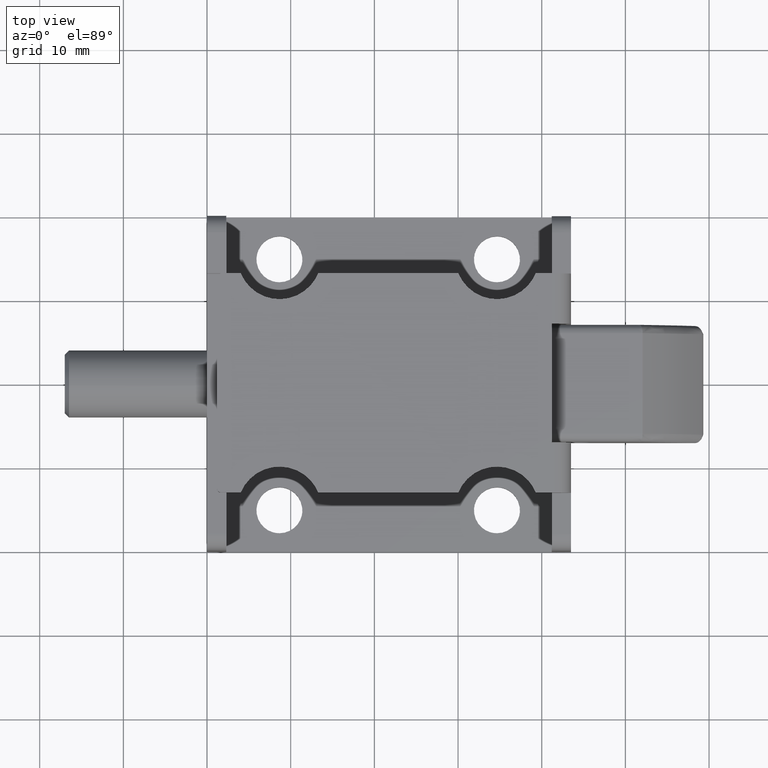
[diagram: clean part render]
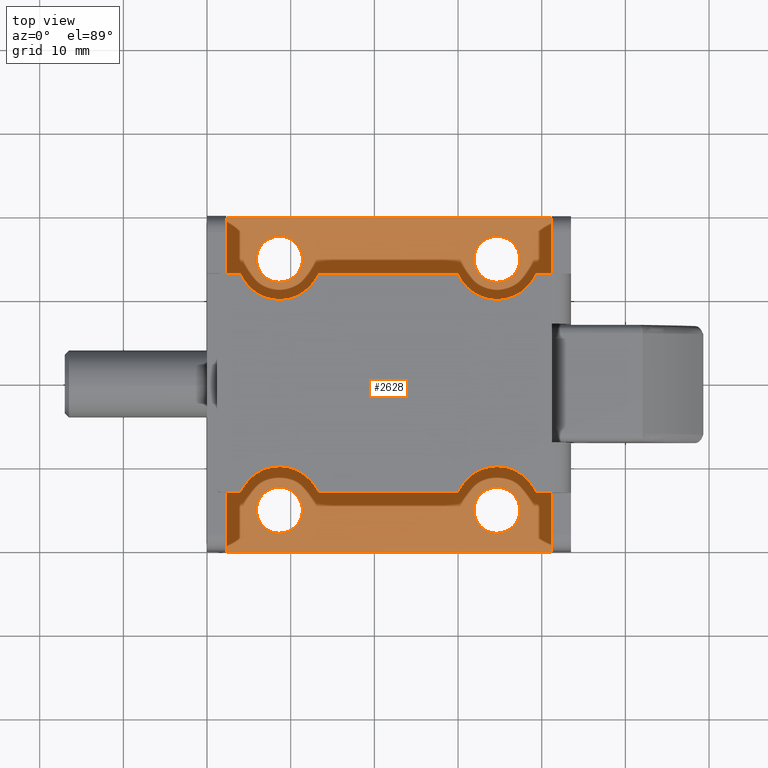
[diagram: same view with one face highlighted and labeled with its STEP entity id]
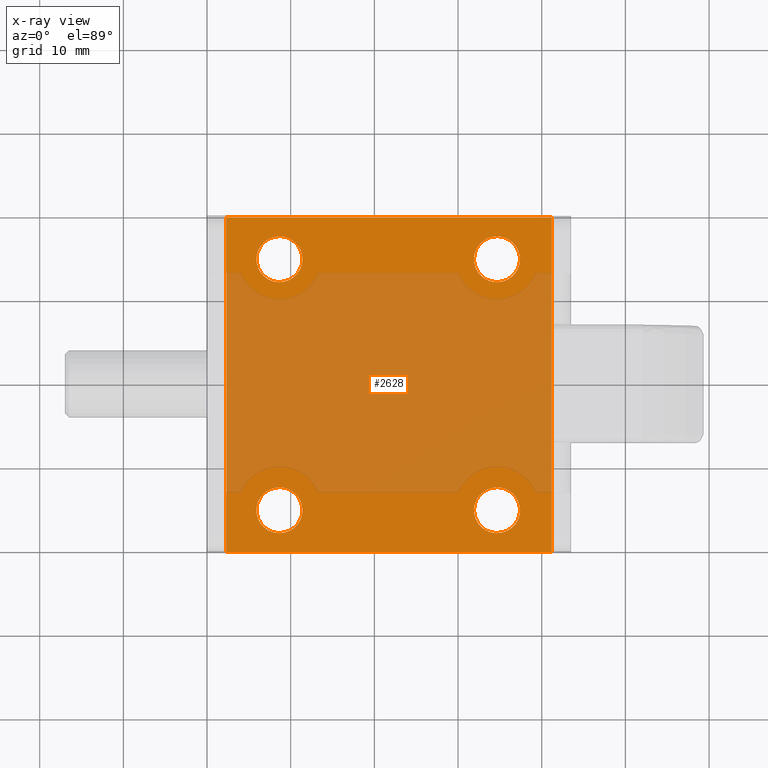
[diagram: x-ray of the same camera — body ghosted, the highlighted face saturated]
A machine part, top view. The second image highlights one B-rep face of the part: STEP entity #2628.
The next image is the same camera in x-ray: the body ghosted, the highlighted face saturated — about 64% of this face is hidden behind the body in this view.
In plain terms, the highlighted face is a freeform B-spline surface patch.
Its self-contained STEP definition (entity closure, byte-faithful):
#612=CARTESIAN_POINT('',(8.650000000000109,5.0,17.750000000000000));
#613=VERTEX_POINT('',#612);
#614=CARTESIAN_POINT('',(5.908477332240707,5.0,15.215762513336699));
#615=VERTEX_POINT('',#614);
#616=CARTESIAN_POINT('',(8.650000000000109,5.0,17.750000000000000));
#617=CARTESIAN_POINT('',(6.107926148098390,5.000000000000001,17.750000000000000));
#618=CARTESIAN_POINT('',(5.908477332240707,4.999999999999999,15.215762513336704));
#626=(BOUNDED_CURVE()B_SPLINE_CURVE(2,(#616,#617,#618),.UNSPECIFIED.,.F.,.U.)B_SPLINE_CURVE_WITH_KNOTS((3,3),(0.0,0.236331300622121),.UNSPECIFIED.)CURVE()GEOMETRIC_REPRESENTATION_ITEM()RATIONAL_B_SPLINE_CURVE((1.0,0.723120658617669,0.969723356149599))REPRESENTATION_ITEM(''));
#627=EDGE_CURVE('',#613,#615,#626,.T.);
#668=CARTESIAN_POINT('',(11.391522667759510,5.0,14.784237486663301));
#669=VERTEX_POINT('',#668);
#675=CARTESIAN_POINT('',(11.391522667759515,5.0,14.784237486663301));
#676=CARTESIAN_POINT('',(11.400000000000114,5.0,14.891952205643390));
#677=CARTESIAN_POINT('',(11.400000000000110,5.0,15.0));
#678=CARTESIAN_POINT('',(11.400000000000110,5.000000000000001,17.750000000000000));
#679=CARTESIAN_POINT('',(8.650000000000109,5.0,17.750000000000000));
#687=(BOUNDED_CURVE()B_SPLINE_CURVE(2,(#675,#676,#677,#678,#679),.UNSPECIFIED.,.F.,.U.)B_SPLINE_CURVE_WITH_KNOTS((3,2,3),(0.736331300622121,0.750000000000000,1.0),.UNSPECIFIED.)CURVE()GEOMETRIC_REPRESENTATION_ITEM()RATIONAL_B_SPLINE_CURVE((0.969723356149599,0.983986122568879,1.0,0.707106781186548,1.0))REPRESENTATION_ITEM(''));
#688=EDGE_CURVE('',#669,#613,#687,.T.);
#711=CARTESIAN_POINT('',(8.650000000000109,5.0,12.250000000000000));
#712=VERTEX_POINT('',#711);
#713=CARTESIAN_POINT('',(5.908477332240707,4.999999999999999,15.215762513336704));
#714=CARTESIAN_POINT('',(5.900000000000109,4.999999999999999,15.108047794356608));
#715=CARTESIAN_POINT('',(5.900000000000109,5.0,15.0));
#716=CARTESIAN_POINT('',(5.900000000000109,5.000000000000001,12.250000000000000));
#717=CARTESIAN_POINT('',(8.650000000000109,5.0,12.250000000000000));
#725=(BOUNDED_CURVE()B_SPLINE_CURVE(2,(#713,#714,#715,#716,#717),.UNSPECIFIED.,.F.,.U.)B_SPLINE_CURVE_WITH_KNOTS((3,2,3),(0.236331300622121,0.250000000000000,0.500000000000000),.UNSPECIFIED.)CURVE()GEOMETRIC_REPRESENTATION_ITEM()RATIONAL_B_SPLINE_CURVE((0.969723356149599,0.983986122568879,1.0,0.707106781186548,1.0))REPRESENTATION_ITEM(''));
#726=EDGE_CURVE('',#615,#712,#725,.T.);
#728=CARTESIAN_POINT('',(8.650000000000109,5.0,12.250000000000000));
#729=CARTESIAN_POINT('',(11.192073851901824,4.999999999999999,12.250000000000002));
#730=CARTESIAN_POINT('',(11.391522667759507,5.0,14.784237486663304));
#738=(BOUNDED_CURVE()B_SPLINE_CURVE(2,(#728,#729,#730),.UNSPECIFIED.,.F.,.U.)B_SPLINE_CURVE_WITH_KNOTS((3,3),(0.500000000000000,0.736331300622121),.UNSPECIFIED.)CURVE()GEOMETRIC_REPRESENTATION_ITEM()RATIONAL_B_SPLINE_CURVE((1.0,0.723120658617669,0.969723356149599))REPRESENTATION_ITEM(''));
#739=EDGE_CURVE('',#712,#669,#738,.T.);
#794=CARTESIAN_POINT('',(34.649999999999999,5.0,17.750000000000000));
#795=VERTEX_POINT('',#794);
#796=CARTESIAN_POINT('',(31.908477332240601,5.0,15.215762513336699));
#797=VERTEX_POINT('',#796);
#798=CARTESIAN_POINT('',(34.649999999999999,5.0,17.750000000000000));
#799=CARTESIAN_POINT('',(32.107926148098286,5.000000000000001,17.750000000000000));
#800=CARTESIAN_POINT('',(31.908477332240594,4.999999999999999,15.215762513336704));
#808=(BOUNDED_CURVE()B_SPLINE_CURVE(2,(#798,#799,#800),.UNSPECIFIED.,.F.,.U.)B_SPLINE_CURVE_WITH_KNOTS((3,3),(0.0,0.236331300622121),.UNSPECIFIED.)CURVE()GEOMETRIC_REPRESENTATION_ITEM()RATIONAL_B_SPLINE_CURVE((1.0,0.723120658617669,0.969723356149599))REPRESENTATION_ITEM(''));
#809=EDGE_CURVE('',#795,#797,#808,.T.);
#850=CARTESIAN_POINT('',(37.391522667759403,5.0,14.784237486663301));
#851=VERTEX_POINT('',#850);
#857=CARTESIAN_POINT('',(37.391522667759403,5.0,14.784237486663301));
#858=CARTESIAN_POINT('',(37.400000000000006,5.0,14.891952205643390));
#859=CARTESIAN_POINT('',(37.400000000000013,5.0,15.0));
#860=CARTESIAN_POINT('',(37.399999999999999,5.000000000000001,17.750000000000000));
#861=CARTESIAN_POINT('',(34.649999999999999,5.0,17.750000000000000));
#869=(BOUNDED_CURVE()B_SPLINE_CURVE(2,(#857,#858,#859,#860,#861),.UNSPECIFIED.,.F.,.U.)B_SPLINE_CURVE_WITH_KNOTS((3,2,3),(0.736331300622121,0.750000000000000,1.0),.UNSPECIFIED.)CURVE()GEOMETRIC_REPRESENTATION_ITEM()RATIONAL_B_SPLINE_CURVE((0.969723356149599,0.983986122568879,1.0,0.707106781186548,1.0))REPRESENTATION_ITEM(''));
#870=EDGE_CURVE('',#851,#795,#869,.T.);
#893=CARTESIAN_POINT('',(34.649999999999999,5.0,12.250000000000000));
#894=VERTEX_POINT('',#893);
#895=CARTESIAN_POINT('',(31.908477332240594,4.999999999999999,15.215762513336704));
#896=CARTESIAN_POINT('',(31.899999999999995,4.999999999999999,15.108047794356608));
#897=CARTESIAN_POINT('',(31.899999999999999,5.0,15.0));
#898=CARTESIAN_POINT('',(31.900000000000006,5.000000000000001,12.250000000000000));
#899=CARTESIAN_POINT('',(34.649999999999999,5.0,12.250000000000000));
#907=(BOUNDED_CURVE()B_SPLINE_CURVE(2,(#895,#896,#897,#898,#899),.UNSPECIFIED.,.F.,.U.)B_SPLINE_CURVE_WITH_KNOTS((3,2,3),(0.236331300622121,0.250000000000000,0.500000000000000),.UNSPECIFIED.)CURVE()GEOMETRIC_REPRESENTATION_ITEM()RATIONAL_B_SPLINE_CURVE((0.969723356149599,0.983986122568879,1.0,0.707106781186548,1.0))REPRESENTATION_ITEM(''));
#908=EDGE_CURVE('',#797,#894,#907,.T.);
#910=CARTESIAN_POINT('',(34.649999999999999,5.0,12.250000000000000));
#911=CARTESIAN_POINT('',(37.192073851901725,4.999999999999999,12.250000000000002));
#912=CARTESIAN_POINT('',(37.391522667759411,5.0,14.784237486663304));
#920=(BOUNDED_CURVE()B_SPLINE_CURVE(2,(#910,#911,#912),.UNSPECIFIED.,.F.,.U.)B_SPLINE_CURVE_WITH_KNOTS((3,3),(0.500000000000000,0.736331300622121),.UNSPECIFIED.)CURVE()GEOMETRIC_REPRESENTATION_ITEM()RATIONAL_B_SPLINE_CURVE((1.0,0.723120658617669,0.969723356149599))REPRESENTATION_ITEM(''));
#921=EDGE_CURVE('',#894,#851,#920,.T.);
#976=CARTESIAN_POINT('',(8.650000000000109,5.0,-12.250000000000000));
#977=VERTEX_POINT('',#976);
#978=CARTESIAN_POINT('',(5.908477332240707,5.0,-14.784237486663301));
#979=VERTEX_POINT('',#978);
#980=CARTESIAN_POINT('',(8.650000000000109,5.0,-12.250000000000000));
#981=CARTESIAN_POINT('',(6.107926148098391,4.999999999999999,-12.249999999999998));
#982=CARTESIAN_POINT('',(5.908477332240707,5.0,-14.784237486663304));
#990=(BOUNDED_CURVE()B_SPLINE_CURVE(2,(#980,#981,#982),.UNSPECIFIED.,.F.,.U.)B_SPLINE_CURVE_WITH_KNOTS((3,3),(0.0,0.236331300622121),.UNSPECIFIED.)CURVE()GEOMETRIC_REPRESENTATION_ITEM()RATIONAL_B_SPLINE_CURVE((1.0,0.723120658617669,0.969723356149599))REPRESENTATION_ITEM(''));
#991=EDGE_CURVE('',#977,#979,#990,.T.);
#1032=CARTESIAN_POINT('',(11.391522667759510,5.0,-15.215762513336699));
#1033=VERTEX_POINT('',#1032);
#1039=CARTESIAN_POINT('',(11.391522667759515,5.0,-15.215762513336697));
#1040=CARTESIAN_POINT('',(11.400000000000114,5.0,-15.108047794356610));
#1041=CARTESIAN_POINT('',(11.400000000000110,5.0,-15.0));
#1042=CARTESIAN_POINT('',(11.400000000000110,5.000000000000001,-12.250000000000000));
#1043=CARTESIAN_POINT('',(8.650000000000109,5.0,-12.250000000000000));
#1051=(BOUNDED_CURVE()B_SPLINE_CURVE(2,(#1039,#1040,#1041,#1042,#1043),.UNSPECIFIED.,.F.,.U.)B_SPLINE_CURVE_WITH_KNOTS((3,2,3),(0.736331300622121,0.750000000000000,1.0),.UNSPECIFIED.)CURVE()GEOMETRIC_REPRESENTATION_ITEM()RATIONAL_B_SPLINE_CURVE((0.969723356149599,0.983986122568879,1.0,0.707106781186548,1.0))REPRESENTATION_ITEM(''));
#1052=EDGE_CURVE('',#1033,#977,#1051,.T.);
#1075=CARTESIAN_POINT('',(8.650000000000109,5.0,-17.750000000000000));
#1076=VERTEX_POINT('',#1075);
#1077=CARTESIAN_POINT('',(5.908477332240707,5.0,-14.784237486663301));
#1078=CARTESIAN_POINT('',(5.900000000000109,5.0,-14.891952205643390));
#1079=CARTESIAN_POINT('',(5.900000000000109,5.0,-15.0));
#1080=CARTESIAN_POINT('',(5.900000000000109,5.000000000000001,-17.750000000000000));
#1081=CARTESIAN_POINT('',(8.650000000000109,5.0,-17.750000000000000));
#1089=(BOUNDED_CURVE()B_SPLINE_CURVE(2,(#1077,#1078,#1079,#1080,#1081),.UNSPECIFIED.,.F.,.U.)B_SPLINE_CURVE_WITH_KNOTS((3,2,3),(0.236331300622121,0.250000000000000,0.500000000000000),.UNSPECIFIED.)CURVE()GEOMETRIC_REPRESENTATION_ITEM()RATIONAL_B_SPLINE_CURVE((0.969723356149599,0.983986122568879,1.0,0.707106781186548,1.0))REPRESENTATION_ITEM(''));
#1090=EDGE_CURVE('',#979,#1076,#1089,.T.);
#1092=CARTESIAN_POINT('',(8.650000000000109,5.0,-17.750000000000000));
#1093=CARTESIAN_POINT('',(11.192073851901824,4.999999999999999,-17.749999999999996));
#1094=CARTESIAN_POINT('',(11.391522667759507,5.0,-15.215762513336701));
#1102=(BOUNDED_CURVE()B_SPLINE_CURVE(2,(#1092,#1093,#1094),.UNSPECIFIED.,.F.,.U.)B_SPLINE_CURVE_WITH_KNOTS((3,3),(0.500000000000000,0.736331300622121),.UNSPECIFIED.)CURVE()GEOMETRIC_REPRESENTATION_ITEM()RATIONAL_B_SPLINE_CURVE((1.0,0.723120658617669,0.969723356149599))REPRESENTATION_ITEM(''));
#1103=EDGE_CURVE('',#1076,#1033,#1102,.T.);
#1158=CARTESIAN_POINT('',(34.649999999999999,5.0,-12.250000000000000));
#1159=VERTEX_POINT('',#1158);
#1160=CARTESIAN_POINT('',(31.908477332240601,5.0,-14.784237486663301));
#1161=VERTEX_POINT('',#1160);
#1162=CARTESIAN_POINT('',(34.649999999999999,5.0,-12.250000000000000));
#1163=CARTESIAN_POINT('',(32.107926148098286,5.000000000000001,-12.250000000000000));
#1164=CARTESIAN_POINT('',(31.908477332240594,4.999999999999999,-14.784237486663297));
#1172=(BOUNDED_CURVE()B_SPLINE_CURVE(2,(#1162,#1163,#1164),.UNSPECIFIED.,.F.,.U.)B_SPLINE_CURVE_WITH_KNOTS((3,3),(0.0,0.236331300622121),.UNSPECIFIED.)CURVE()GEOMETRIC_REPRESENTATION_ITEM()RATIONAL_B_SPLINE_CURVE((1.0,0.723120658617669,0.969723356149599))REPRESENTATION_ITEM(''));
#1173=EDGE_CURVE('',#1159,#1161,#1172,.T.);
#1214=CARTESIAN_POINT('',(37.391522667759403,5.0,-15.215762513336699));
#1215=VERTEX_POINT('',#1214);
#1221=CARTESIAN_POINT('',(37.391522667759411,5.0,-15.215762513336701));
#1222=CARTESIAN_POINT('',(37.400000000000013,5.0,-15.108047794356612));
#1223=CARTESIAN_POINT('',(37.400000000000013,5.0,-15.0));
#1224=CARTESIAN_POINT('',(37.399999999999999,5.000000000000001,-12.250000000000000));
#1225=CARTESIAN_POINT('',(34.649999999999999,5.0,-12.250000000000000));
#1233=(BOUNDED_CURVE()B_SPLINE_CURVE(2,(#1221,#1222,#1223,#1224,#1225),.UNSPECIFIED.,.F.,.U.)B_SPLINE_CURVE_WITH_KNOTS((3,2,3),(0.736331300622121,0.750000000000000,1.0),.UNSPECIFIED.)CURVE()GEOMETRIC_REPRESENTATION_ITEM()RATIONAL_B_SPLINE_CURVE((0.969723356149599,0.983986122568879,1.0,0.707106781186548,1.0))REPRESENTATION_ITEM(''));
#1234=EDGE_CURVE('',#1215,#1159,#1233,.T.);
#1257=CARTESIAN_POINT('',(34.649999999999999,5.0,-17.750000000000000));
#1258=VERTEX_POINT('',#1257);
#1259=CARTESIAN_POINT('',(31.908477332240594,4.999999999999999,-14.784237486663297));
#1260=CARTESIAN_POINT('',(31.899999999999995,4.999999999999999,-14.891952205643388));
#1261=CARTESIAN_POINT('',(31.899999999999999,5.0,-15.0));
#1262=CARTESIAN_POINT('',(31.900000000000006,5.000000000000001,-17.750000000000000));
#1263=CARTESIAN_POINT('',(34.649999999999999,5.0,-17.750000000000000));
#1271=(BOUNDED_CURVE()B_SPLINE_CURVE(2,(#1259,#1260,#1261,#1262,#1263),.UNSPECIFIED.,.F.,.U.)B_SPLINE_CURVE_WITH_KNOTS((3,2,3),(0.236331300622121,0.250000000000000,0.500000000000000),.UNSPECIFIED.)CURVE()GEOMETRIC_REPRESENTATION_ITEM()RATIONAL_B_SPLINE_CURVE((0.969723356149599,0.983986122568879,1.0,0.707106781186548,1.0))REPRESENTATION_ITEM(''));
#1272=EDGE_CURVE('',#1161,#1258,#1271,.T.);
#1274=CARTESIAN_POINT('',(34.649999999999999,5.0,-17.750000000000000));
#1275=CARTESIAN_POINT('',(37.192073851901725,4.999999999999999,-17.749999999999996));
#1276=CARTESIAN_POINT('',(37.391522667759411,5.0,-15.215762513336701));
#1284=(BOUNDED_CURVE()B_SPLINE_CURVE(2,(#1274,#1275,#1276),.UNSPECIFIED.,.F.,.U.)B_SPLINE_CURVE_WITH_KNOTS((3,3),(0.500000000000000,0.736331300622121),.UNSPECIFIED.)CURVE()GEOMETRIC_REPRESENTATION_ITEM()RATIONAL_B_SPLINE_CURVE((1.0,0.723120658617669,0.969723356149599))REPRESENTATION_ITEM(''));
#1285=EDGE_CURVE('',#1258,#1215,#1284,.T.);
#1806=CARTESIAN_POINT('',(41.200000000000003,5.0,-7.100000000000111));
#1807=VERTEX_POINT('',#1806);
#1877=CARTESIAN_POINT('',(41.200000000000003,5.0,7.100000000000001));
#1878=VERTEX_POINT('',#1877);
#1919=CARTESIAN_POINT('',(41.200000000000003,5.0,-7.100000000000111));
#1920=CARTESIAN_POINT('',(41.200000000000003,5.0,7.100000000000001));
#1921=QUASI_UNIFORM_CURVE('',1,(#1919,#1920),.UNSPECIFIED.,.F.,.U.);
#1922=EDGE_CURVE('',#1807,#1878,#1921,.T.);
#2259=CARTESIAN_POINT('',(2.300000000000110,5.0,20.0));
#2260=VERTEX_POINT('',#2259);
#2295=CARTESIAN_POINT('',(2.300000000000110,5.0,-20.0));
#2296=VERTEX_POINT('',#2295);
#2302=CARTESIAN_POINT('',(2.300000000000110,5.0,-20.0));
#2303=CARTESIAN_POINT('',(2.300000000000110,5.0,20.0));
#2304=QUASI_UNIFORM_CURVE('',1,(#2302,#2303),.UNSPECIFIED.,.F.,.U.);
#2305=EDGE_CURVE('',#2296,#2260,#2304,.T.);
#2427=CARTESIAN_POINT('',(41.200000000000003,5.0,20.0));
#2428=VERTEX_POINT('',#2427);
#2470=CARTESIAN_POINT('',(2.300000000000110,5.0,20.0));
#2471=CARTESIAN_POINT('',(41.200000000000003,5.0,20.0));
#2472=QUASI_UNIFORM_CURVE('',1,(#2470,#2471),.UNSPECIFIED.,.F.,.U.);
#2473=EDGE_CURVE('',#2260,#2428,#2472,.T.);
#2489=CARTESIAN_POINT('',(41.200000000000003,5.0,-20.0));
#2490=VERTEX_POINT('',#2489);
#2496=CARTESIAN_POINT('',(2.300000000000110,5.0,-20.0));
#2497=CARTESIAN_POINT('',(41.200000000000003,5.0,-20.0));
#2498=QUASI_UNIFORM_CURVE('',1,(#2496,#2497),.UNSPECIFIED.,.F.,.U.);
#2499=EDGE_CURVE('',#2296,#2490,#2498,.T.);
#2583=CARTESIAN_POINT('',(0.356945075395863,5.0,21.997999922472239));
#2584=CARTESIAN_POINT('',(0.356945075395863,5.0,-21.998000995355849));
#2585=CARTESIAN_POINT('',(43.143055967983557,5.0,21.997999922472239));
#2586=CARTESIAN_POINT('',(43.143055967983557,5.0,-21.998000995355849));
#2587=B_SPLINE_SURFACE_WITH_KNOTS('',1,1,((#2583,#2585),(#2584,#2586)),.UNSPECIFIED.,.F.,.F.,.U.,(2,2),(2,2),(0.0,43.996000917828077),(0.0,42.786110892587693),.UNSPECIFIED.);
#2588=ORIENTED_EDGE('',*,*,#2473,.F.);
#2589=ORIENTED_EDGE('',*,*,#2305,.F.);
#2590=ORIENTED_EDGE('',*,*,#2499,.T.);
#2591=CARTESIAN_POINT('',(41.200000000000003,5.0,-20.0));
#2592=CARTESIAN_POINT('',(41.200000000000003,5.0,-7.100000000000111));
#2593=QUASI_UNIFORM_CURVE('',1,(#2591,#2592),.UNSPECIFIED.,.F.,.U.);
#2594=EDGE_CURVE('',#2490,#1807,#2593,.T.);
#2595=ORIENTED_EDGE('',*,*,#2594,.T.);
#2596=ORIENTED_EDGE('',*,*,#1922,.T.);
#2597=CARTESIAN_POINT('',(41.200000000000003,5.0,7.100000000000001));
#2598=CARTESIAN_POINT('',(41.200000000000003,5.0,20.0));
#2599=QUASI_UNIFORM_CURVE('',1,(#2597,#2598),.UNSPECIFIED.,.F.,.U.);
#2600=EDGE_CURVE('',#1878,#2428,#2599,.T.);
#2601=ORIENTED_EDGE('',*,*,#2600,.T.);
#2602=EDGE_LOOP('',(#2588,#2589,#2590,#2595,#2596,#2601));
#2603=FACE_OUTER_BOUND('',#2602,.T.);
#2604=ORIENTED_EDGE('',*,*,#1285,.F.);
#2605=ORIENTED_EDGE('',*,*,#1272,.F.);
#2606=ORIENTED_EDGE('',*,*,#1173,.F.);
#2607=ORIENTED_EDGE('',*,*,#1234,.F.);
#2608=EDGE_LOOP('',(#2604,#2605,#2606,#2607));
#2609=FACE_BOUND('',#2608,.T.);
#2610=ORIENTED_EDGE('',*,*,#1103,.F.);
#2611=ORIENTED_EDGE('',*,*,#1090,.F.);
#2612=ORIENTED_EDGE('',*,*,#991,.F.);
#2613=ORIENTED_EDGE('',*,*,#1052,.F.);
#2614=EDGE_LOOP('',(#2610,#2611,#2612,#2613));
#2615=FACE_BOUND('',#2614,.T.);
#2616=ORIENTED_EDGE('',*,*,#921,.F.);
#2617=ORIENTED_EDGE('',*,*,#908,.F.);
#2618=ORIENTED_EDGE('',*,*,#809,.F.);
#2619=ORIENTED_EDGE('',*,*,#870,.F.);
#2620=EDGE_LOOP('',(#2616,#2617,#2618,#2619));
#2621=FACE_BOUND('',#2620,.T.);
#2622=ORIENTED_EDGE('',*,*,#739,.F.);
#2623=ORIENTED_EDGE('',*,*,#726,.F.);
#2624=ORIENTED_EDGE('',*,*,#627,.F.);
#2625=ORIENTED_EDGE('',*,*,#688,.F.);
#2626=EDGE_LOOP('',(#2622,#2623,#2624,#2625));
#2627=FACE_BOUND('',#2626,.T.);
#2628=ADVANCED_FACE('',(#2603,#2609,#2615,#2621,#2627),#2587,.T.);